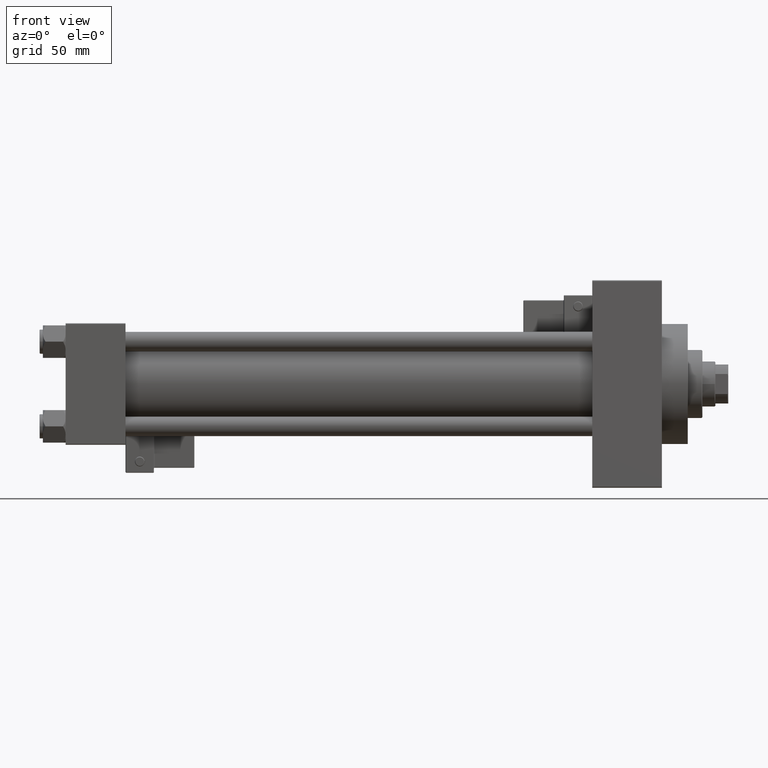
[diagram: clean part render]
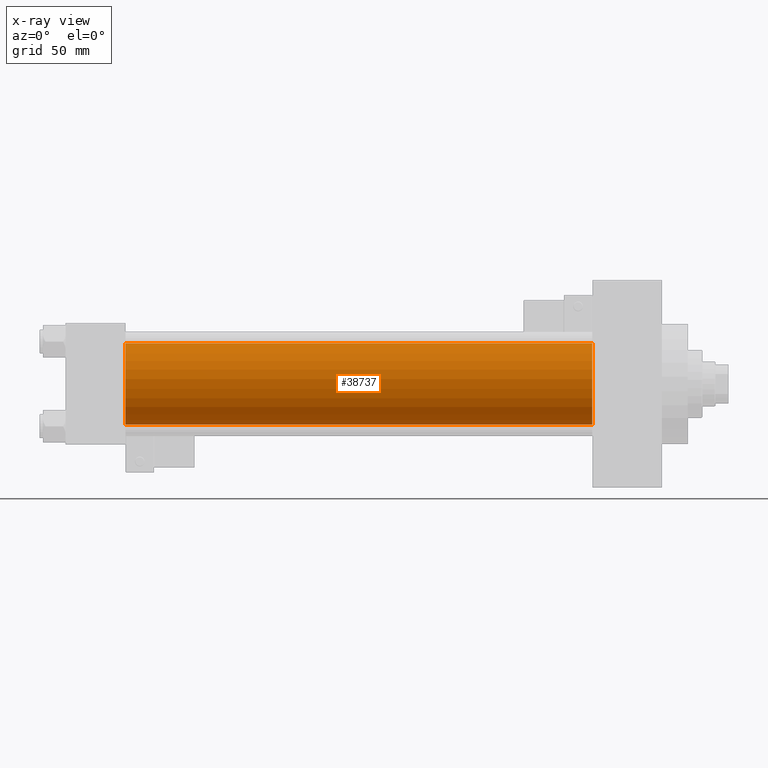
[diagram: x-ray — body ghosted, one internal face saturated and labeled with its STEP entity id]
A machine part, front view, then the same camera in x-ray: the body is ghosted and one INTERNAL B-rep face — a face not visible from any outside direction — is saturated and labeled: STEP entity #38737.
In plain terms, the highlighted cylindrical surface (partial cylindrical patch) has radius 25 mm, axis along (-1, -0, -0).
Its self-contained STEP definition (entity closure, byte-faithful):
#2491 = EDGE_CURVE ( 'NONE', #24125, #18648, #39721, .T. ) ;
#4745 = ORIENTED_EDGE ( 'NONE', *, *, #44523, .T. ) ;
#8676 = ORIENTED_EDGE ( 'NONE', *, *, #2491, .F. ) ;
#9161 = CARTESIAN_POINT ( 'NONE',  ( 37.00000000000000000, -2.602085213965210642E-15, 25.00000000000000000 ) ) ;
#13068 = VECTOR ( 'NONE', #48748, 1000.000000000000000 ) ;
#14295 = CYLINDRICAL_SURFACE ( 'NONE', #42892, 25.00000000000000000 ) ;
#14406 = DIRECTION ( 'NONE',  ( 1.000000000000000000, 0.000000000000000000, 0.000000000000000000 ) ) ;
#18648 = VERTEX_POINT ( 'NONE', #9161 ) ;
#18672 = AXIS2_PLACEMENT_3D ( 'NONE', #47991, #24071, #36038 ) ;
#19216 = DIRECTION ( 'NONE',  ( -1.000000000000000000, -0.000000000000000000, -0.000000000000000000 ) ) ;
#21417 = ORIENTED_EDGE ( 'NONE', *, *, #46343, .F. ) ;
#22349 = CARTESIAN_POINT ( 'NONE',  ( 324.9999999999999432, -2.602085213965210642E-15, 0.000000000000000000 ) ) ;
#22847 = CIRCLE ( 'NONE', #18672, 25.00000000000000000 ) ;
#23285 = ORIENTED_EDGE ( 'NONE', *, *, #50726, .T. ) ;
#24071 = DIRECTION ( 'NONE',  ( 1.000000000000000000, 0.000000000000000000, 0.000000000000000000 ) ) ;
#24125 = VERTEX_POINT ( 'NONE', #47247 ) ;
#25261 = CIRCLE ( 'NONE', #28604, 25.00000000000000000 ) ;
#28237 = CARTESIAN_POINT ( 'NONE',  ( 37.00000000000000000, 4.595317839031724996E-16, -25.00000000000000000 ) ) ;
#28604 = AXIS2_PLACEMENT_3D ( 'NONE', #49023, #14406, #30290 ) ;
#28654 = CARTESIAN_POINT ( 'NONE',  ( 324.9999999999999432, 4.595317839031724996E-16, -25.00000000000000000 ) ) ;
#30290 = DIRECTION ( 'NONE',  ( 0.000000000000000000, 0.000000000000000000, -1.000000000000000000 ) ) ;
#32893 = LINE ( 'NONE', #47979, #13068 ) ;
#33747 = EDGE_LOOP ( 'NONE', ( #4745, #23285, #21417, #8676 ) ) ;
#36038 = DIRECTION ( 'NONE',  ( 0.000000000000000000, 0.000000000000000000, -1.000000000000000000 ) ) ;
#36085 = DIRECTION ( 'NONE',  ( -1.000000000000000000, -0.000000000000000000, -0.000000000000000000 ) ) ;
#38737 = ADVANCED_FACE ( 'NONE', ( #38986 ), #14295, .F. ) ;
#38986 = FACE_OUTER_BOUND ( 'NONE', #33747, .T. ) ;
#39721 = LINE ( 'NONE', #47527, #42166 ) ;
#42166 = VECTOR ( 'NONE', #36085, 1000.000000000000000 ) ;
#42892 = AXIS2_PLACEMENT_3D ( 'NONE', #22349, #19216, #46782 ) ;
#44523 = EDGE_CURVE ( 'NONE', #24125, #48815, #25261, .T. ) ;
#46343 = EDGE_CURVE ( 'NONE', #18648, #46357, #22847, .T. ) ;
#46357 = VERTEX_POINT ( 'NONE', #28237 ) ;
#46782 = DIRECTION ( 'NONE',  ( 0.000000000000000000, 0.000000000000000000, 1.000000000000000000 ) ) ;
#47247 = CARTESIAN_POINT ( 'NONE',  ( 324.9999999999999432, -2.602085213965210642E-15, 25.00000000000000000 ) ) ;
#47527 = CARTESIAN_POINT ( 'NONE',  ( 324.9999999999999432, -2.602085213965210642E-15, 25.00000000000000000 ) ) ;
#47979 = CARTESIAN_POINT ( 'NONE',  ( 324.9999999999999432, 4.595317839031724996E-16, -25.00000000000000000 ) ) ;
#47991 = CARTESIAN_POINT ( 'NONE',  ( 37.00000000000000000, -2.602085213965210642E-15, 0.000000000000000000 ) ) ;
#48748 = DIRECTION ( 'NONE',  ( -1.000000000000000000, -0.000000000000000000, -0.000000000000000000 ) ) ;
#48815 = VERTEX_POINT ( 'NONE', #28654 ) ;
#49023 = CARTESIAN_POINT ( 'NONE',  ( 324.9999999999999432, -2.602085213965210642E-15, 0.000000000000000000 ) ) ;
#50726 = EDGE_CURVE ( 'NONE', #48815, #46357, #32893, .T. ) ;